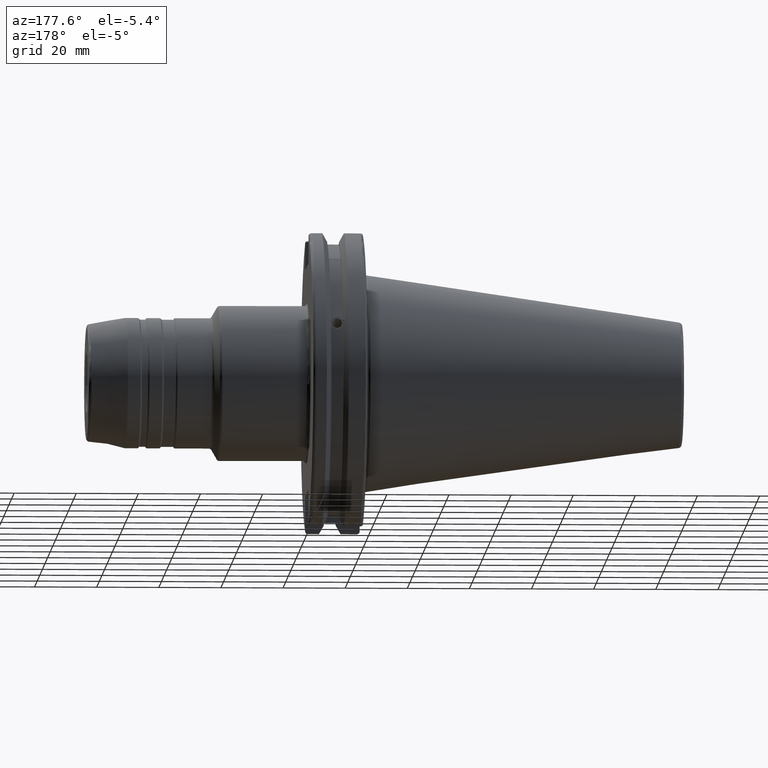
[diagram: clean part render]
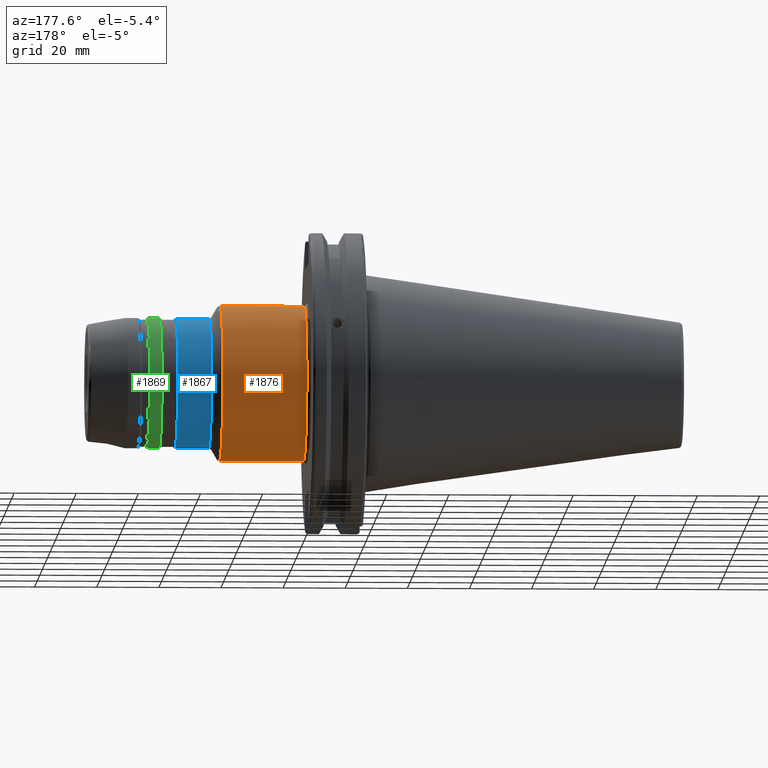
[diagram: same view with three faces highlighted in distinct colors, each labeled with its STEP entity id]
A machine part, auxiliary view with three faces highlighted in distinct colors.
Their STEP definitions:

[orange] entity #1876 — the highlighted cylindrical surface (bore or boss wall) has radius 25 mm, axis along (1, 0, 0).
#160=LINE('',#2943,#264);
#264=VECTOR('',#2386,25.);
#363=CYLINDRICAL_SURFACE('',#2059,25.);
#410=FACE_OUTER_BOUND('',#518,.T.);
#518=EDGE_LOOP('',(#1367,#1368,#1369,#1370,#1371,#1372));
#674=CIRCLE('',#2057,25.);
#675=CIRCLE('',#2058,25.);
#676=CIRCLE('',#2060,25.);
#677=CIRCLE('',#2061,25.);
#795=VERTEX_POINT('',#2936);
#796=VERTEX_POINT('',#2938);
#797=VERTEX_POINT('',#2942);
#798=VERTEX_POINT('',#2944);
#1012=EDGE_CURVE('',#795,#796,#674,.T.);
#1013=EDGE_CURVE('',#796,#795,#675,.T.);
#1014=EDGE_CURVE('',#796,#797,#160,.T.);
#1015=EDGE_CURVE('',#798,#797,#676,.T.);
#1016=EDGE_CURVE('',#797,#798,#677,.T.);
#1367=ORIENTED_EDGE('',*,*,#1013,.F.);
#1368=ORIENTED_EDGE('',*,*,#1014,.T.);
#1369=ORIENTED_EDGE('',*,*,#1015,.F.);
#1370=ORIENTED_EDGE('',*,*,#1016,.F.);
#1371=ORIENTED_EDGE('',*,*,#1014,.F.);
#1372=ORIENTED_EDGE('',*,*,#1012,.F.);
#1876=ADVANCED_FACE('',(#410),#363,.T.);
#2057=AXIS2_PLACEMENT_3D('',#2939,#2380,#2381);
#2058=AXIS2_PLACEMENT_3D('',#2940,#2382,#2383);
#2059=AXIS2_PLACEMENT_3D('',#2941,#2384,#2385);
#2060=AXIS2_PLACEMENT_3D('',#2945,#2387,#2388);
#2061=AXIS2_PLACEMENT_3D('',#2946,#2389,#2390);
#2380=DIRECTION('center_axis',(1.,0.,0.));
#2381=DIRECTION('ref_axis',(0.,-1.,1.83697019872103E-16));
#2382=DIRECTION('center_axis',(1.,0.,0.));
#2383=DIRECTION('ref_axis',(0.,-1.,1.83697019872103E-16));
#2384=DIRECTION('center_axis',(1.,0.,0.));
#2385=DIRECTION('ref_axis',(0.,1.,0.));
#2386=DIRECTION('',(-1.,0.,0.));
#2387=DIRECTION('center_axis',(-1.,0.,0.));
#2388=DIRECTION('ref_axis',(0.,-1.,-1.22464679914735E-16));
#2389=DIRECTION('center_axis',(-1.,0.,0.));
#2390=DIRECTION('ref_axis',(0.,-1.,-1.22464679914735E-16));
#2936=CARTESIAN_POINT('',(47.1132486540519,-3.06161699786838E-15,25.));
#2938=CARTESIAN_POINT('',(47.1132486540519,-25.,-3.06161699786838E-15));
#2939=CARTESIAN_POINT('Origin',(47.1132486540519,0.,0.));
#2940=CARTESIAN_POINT('Origin',(47.1132486540519,0.,0.));
#2941=CARTESIAN_POINT('Origin',(33.3702994616207,0.,0.));
#2942=CARTESIAN_POINT('',(20.05,-25.,-3.06161699786838E-15));
#2943=CARTESIAN_POINT('',(33.3702994616207,-25.,-3.06161699786838E-15));
#2944=CARTESIAN_POINT('',(20.05,-3.06161699786838E-15,-25.));
#2945=CARTESIAN_POINT('Origin',(20.05,0.,0.));
#2946=CARTESIAN_POINT('Origin',(20.05,0.,0.));

[blue] entity #1867 — the highlighted cylindrical surface (bore or boss wall) has radius 21 mm, axis along (1, 0, 0).
#156=LINE('',#2893,#260);
#260=VECTOR('',#2322,21.);
#360=CYLINDRICAL_SURFACE('',#2029,21.);
#401=FACE_OUTER_BOUND('',#509,.T.);
#509=EDGE_LOOP('',(#1313,#1314,#1315,#1316,#1317,#1318));
#653=CIRCLE('',#2027,21.);
#654=CIRCLE('',#2028,21.);
#655=CIRCLE('',#2030,21.);
#656=CIRCLE('',#2031,21.);
#779=VERTEX_POINT('',#2886);
#780=VERTEX_POINT('',#2888);
#781=VERTEX_POINT('',#2892);
#782=VERTEX_POINT('',#2894);
#987=EDGE_CURVE('',#779,#780,#653,.T.);
#988=EDGE_CURVE('',#780,#779,#654,.T.);
#989=EDGE_CURVE('',#780,#781,#156,.T.);
#990=EDGE_CURVE('',#782,#781,#655,.T.);
#991=EDGE_CURVE('',#781,#782,#656,.T.);
#1313=ORIENTED_EDGE('',*,*,#988,.F.);
#1314=ORIENTED_EDGE('',*,*,#989,.T.);
#1315=ORIENTED_EDGE('',*,*,#990,.F.);
#1316=ORIENTED_EDGE('',*,*,#991,.F.);
#1317=ORIENTED_EDGE('',*,*,#989,.F.);
#1318=ORIENTED_EDGE('',*,*,#987,.F.);
#1867=ADVANCED_FACE('',(#401),#360,.T.);
#2027=AXIS2_PLACEMENT_3D('',#2889,#2316,#2317);
#2028=AXIS2_PLACEMENT_3D('',#2890,#2318,#2319);
#2029=AXIS2_PLACEMENT_3D('',#2891,#2320,#2321);
#2030=AXIS2_PLACEMENT_3D('',#2895,#2323,#2324);
#2031=AXIS2_PLACEMENT_3D('',#2896,#2325,#2326);
#2316=DIRECTION('center_axis',(1.,0.,0.));
#2317=DIRECTION('ref_axis',(0.,-1.,1.83697019872103E-16));
#2318=DIRECTION('center_axis',(1.,0.,0.));
#2319=DIRECTION('ref_axis',(0.,-1.,1.83697019872103E-16));
#2320=DIRECTION('center_axis',(1.,0.,0.));
#2321=DIRECTION('ref_axis',(0.,1.,0.));
#2322=DIRECTION('',(-1.,0.,0.));
#2323=DIRECTION('center_axis',(-1.,0.,0.));
#2324=DIRECTION('ref_axis',(0.,-1.,1.83697019872103E-16));
#2325=DIRECTION('center_axis',(-1.,0.,0.));
#2326=DIRECTION('ref_axis',(0.,-1.,1.83697019872103E-16));
#2886=CARTESIAN_POINT('',(61.4803847577293,-2.57175827820944E-15,21.));
#2888=CARTESIAN_POINT('',(61.4803847577293,-21.,-2.57175827820944E-15));
#2889=CARTESIAN_POINT('Origin',(61.4803847577293,0.,0.));
#2890=CARTESIAN_POINT('Origin',(61.4803847577293,0.,0.));
#2891=CARTESIAN_POINT('Origin',(55.8556624327026,0.,0.));
#2892=CARTESIAN_POINT('',(50.5773502691896,-21.,-2.57175827820944E-15));
#2893=CARTESIAN_POINT('',(55.8556624327026,-21.,-2.57175827820944E-15));
#2894=CARTESIAN_POINT('',(50.5773502691896,-2.57175827820944E-15,21.));
#2895=CARTESIAN_POINT('Origin',(50.5773502691896,0.,0.));
#2896=CARTESIAN_POINT('Origin',(50.5773502691896,0.,0.));

[green] entity #1869 — the highlighted cylindrical surface (bore or boss wall) has radius 21 mm, axis along (1, 0, 0).
#157=LINE('',#2907,#261);
#261=VECTOR('',#2339,21.);
#361=CYLINDRICAL_SURFACE('',#2036,21.);
#403=FACE_OUTER_BOUND('',#511,.T.);
#511=EDGE_LOOP('',(#1325,#1326,#1327,#1328,#1329,#1330));
#657=CIRCLE('',#2033,21.);
#658=CIRCLE('',#2034,21.);
#660=CIRCLE('',#2037,21.);
#661=CIRCLE('',#2038,21.);
#783=VERTEX_POINT('',#2898);
#784=VERTEX_POINT('',#2899);
#785=VERTEX_POINT('',#2904);
#786=VERTEX_POINT('',#2905);
#992=EDGE_CURVE('',#783,#784,#657,.T.);
#993=EDGE_CURVE('',#784,#783,#658,.T.);
#995=EDGE_CURVE('',#785,#786,#660,.T.);
#996=EDGE_CURVE('',#785,#784,#157,.T.);
#997=EDGE_CURVE('',#786,#785,#661,.T.);
#1325=ORIENTED_EDGE('',*,*,#995,.F.);
#1326=ORIENTED_EDGE('',*,*,#996,.T.);
#1327=ORIENTED_EDGE('',*,*,#992,.F.);
#1328=ORIENTED_EDGE('',*,*,#993,.F.);
#1329=ORIENTED_EDGE('',*,*,#996,.F.);
#1330=ORIENTED_EDGE('',*,*,#997,.F.);
#1869=ADVANCED_FACE('',(#403),#361,.T.);
#2033=AXIS2_PLACEMENT_3D('',#2900,#2329,#2330);
#2034=AXIS2_PLACEMENT_3D('',#2901,#2331,#2332);
#2036=AXIS2_PLACEMENT_3D('',#2903,#2335,#2336);
#2037=AXIS2_PLACEMENT_3D('',#2906,#2337,#2338);
#2038=AXIS2_PLACEMENT_3D('',#2908,#2340,#2341);
#2329=DIRECTION('center_axis',(-1.,0.,0.));
#2330=DIRECTION('ref_axis',(0.,-1.,1.83697019872103E-16));
#2331=DIRECTION('center_axis',(-1.,0.,0.));
#2332=DIRECTION('ref_axis',(0.,-1.,1.83697019872103E-16));
#2335=DIRECTION('center_axis',(1.,0.,0.));
#2336=DIRECTION('ref_axis',(0.,1.,0.));
#2337=DIRECTION('center_axis',(1.,0.,0.));
#2338=DIRECTION('ref_axis',(0.,-1.,1.83697019872103E-16));
#2339=DIRECTION('',(-1.,0.,0.));
#2340=DIRECTION('center_axis',(1.,0.,0.));
#2341=DIRECTION('ref_axis',(0.,-1.,1.83697019872103E-16));
#2898=CARTESIAN_POINT('',(66.5196152422706,-2.57175827820944E-15,21.));
#2899=CARTESIAN_POINT('',(66.5196152422706,-21.,-2.57175827820944E-15));
#2900=CARTESIAN_POINT('Origin',(66.5196152422706,0.,0.));
#2901=CARTESIAN_POINT('Origin',(66.5196152422706,0.,0.));
#2903=CARTESIAN_POINT('Origin',(68.5,0.,0.));
#2904=CARTESIAN_POINT('',(70.4803847577293,-21.,-2.57175827820944E-15));
#2905=CARTESIAN_POINT('',(70.4803847577293,-2.57175827820944E-15,21.));
#2906=CARTESIAN_POINT('Origin',(70.4803847577293,0.,0.));
#2907=CARTESIAN_POINT('',(68.5,-21.,-2.57175827820944E-15));
#2908=CARTESIAN_POINT('Origin',(70.4803847577293,0.,0.));